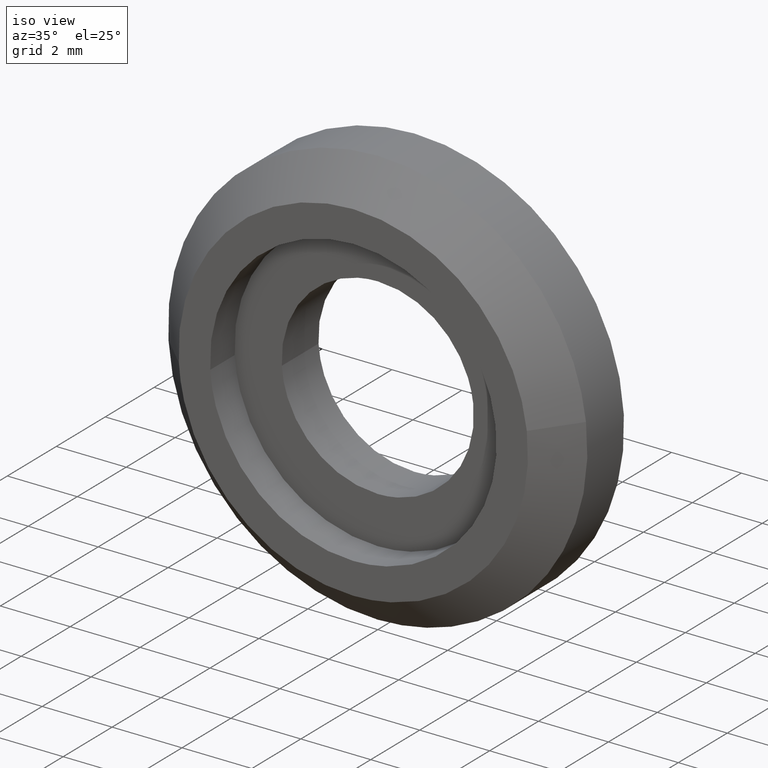
[diagram: clean part render]
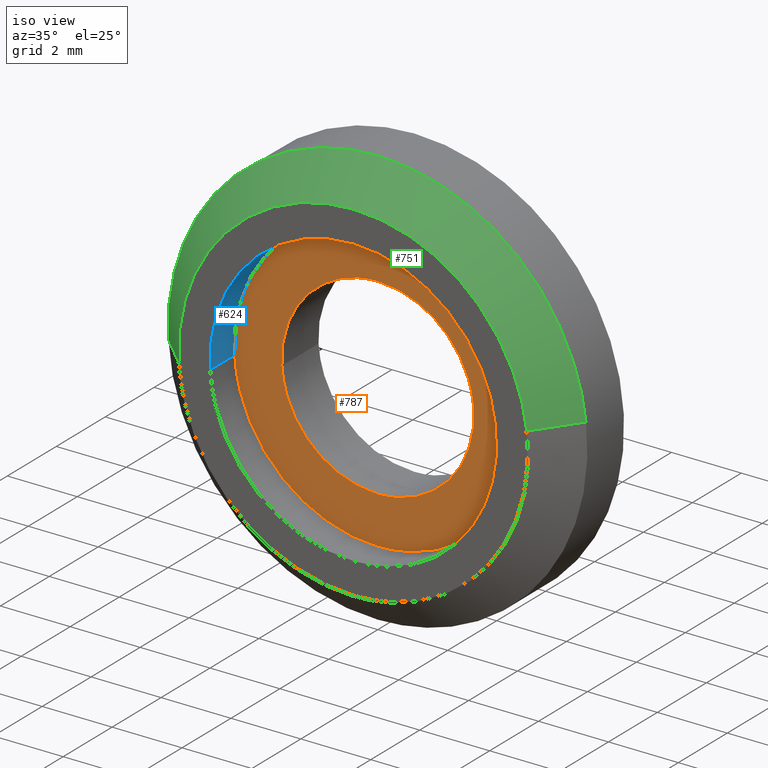
[diagram: same view with three faces highlighted in distinct colors, each labeled with its STEP entity id]
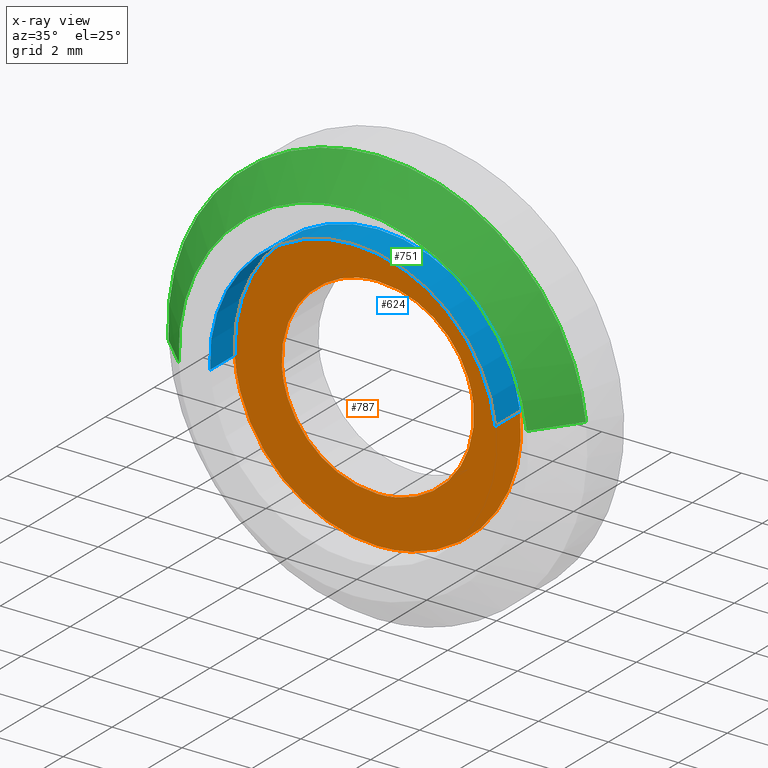
[diagram: x-ray of the same camera — body ghosted, the three highlighted faces saturated]
A machine part, iso view with three faces highlighted in distinct colors.
The next image is the same camera in x-ray (body ghosted, the three faces saturated) — at least one of them is partly hidden behind the body in this view.
Their STEP definitions:

[orange] entity #787 — the highlighted face is a freeform B-spline surface patch.
#305=CARTESIAN_POINT('',(-2.744870950539090,3.469447E-017,-0.167879316382936));
#306=VERTEX_POINT('',#305);
#312=CARTESIAN_POINT('',(0.0,0.0,-2.750000000000000));
#313=VERTEX_POINT('',#312);
#314=CARTESIAN_POINT('',(0.0,0.0,-2.750000000000000));
#315=CARTESIAN_POINT('',(-2.586945618898264,0.0,-2.750000000000000));
#316=CARTESIAN_POINT('',(-2.744870950539089,3.469447E-017,-0.167879316382936));
#324=(BOUNDED_CURVE()B_SPLINE_CURVE(2,(#314,#315,#316),.UNSPECIFIED.,.F.,.U.)B_SPLINE_CURVE_WITH_KNOTS((3,3),(0.500000000000000,0.739333224207285),.UNSPECIFIED.)CURVE()GEOMETRIC_REPRESENTATION_ITEM()RATIONAL_B_SPLINE_CURVE((1.0,0.719603686371707,0.976072603115385))REPRESENTATION_ITEM(''));
#325=EDGE_CURVE('',#313,#306,#324,.T.);
#327=CARTESIAN_POINT('',(2.730776679625815,3.194357E-017,0.324590089181917));
#328=VERTEX_POINT('',#327);
#329=CARTESIAN_POINT('',(2.730776679625815,3.194357E-017,0.324590089181916));
#330=CARTESIAN_POINT('',(2.750000000000000,0.0,0.162864279540707));
#331=CARTESIAN_POINT('',(2.750000000000000,0.0,0.0));
#332=CARTESIAN_POINT('',(2.750000000000000,0.0,-2.750000000000000));
#333=CARTESIAN_POINT('',(0.0,0.0,-2.750000000000000));
#341=(BOUNDED_CURVE()B_SPLINE_CURVE(2,(#329,#330,#331,#332,#333),.UNSPECIFIED.,.F.,.U.)B_SPLINE_CURVE_WITH_KNOTS((3,2,3),(0.229562724542522,0.250000000000000,0.500000000000000),.UNSPECIFIED.)CURVE()GEOMETRIC_REPRESENTATION_ITEM()RATIONAL_B_SPLINE_CURVE((0.956027246211430,0.976056242429929,1.0,0.707106781186548,1.0))REPRESENTATION_ITEM(''));
#342=EDGE_CURVE('',#328,#313,#341,.T.);
#390=CARTESIAN_POINT('',(0.0,0.0,2.750000000000000));
#391=VERTEX_POINT('',#390);
#392=CARTESIAN_POINT('',(0.0,0.0,2.750000000000000));
#393=CARTESIAN_POINT('',(2.442483599814294,0.0,2.750000000000000));
#394=CARTESIAN_POINT('',(2.730776679625815,3.194357E-017,0.324590089181916));
#402=(BOUNDED_CURVE()B_SPLINE_CURVE(2,(#392,#393,#394),.UNSPECIFIED.,.F.,.U.)B_SPLINE_CURVE_WITH_KNOTS((3,3),(0.0,0.229562724542522),.UNSPECIFIED.)CURVE()GEOMETRIC_REPRESENTATION_ITEM()RATIONAL_B_SPLINE_CURVE((1.0,0.731050538756619,0.956027246211430))REPRESENTATION_ITEM(''));
#403=EDGE_CURVE('',#391,#328,#402,.T.);
#405=CARTESIAN_POINT('',(-2.744870950539089,3.469447E-017,-0.167879316382936));
#406=CARTESIAN_POINT('',(-2.750000000000000,0.0,-0.084018009559996));
#407=CARTESIAN_POINT('',(-2.750000000000000,0.0,0.0));
#408=CARTESIAN_POINT('',(-2.750000000000000,0.0,2.750000000000000));
#409=CARTESIAN_POINT('',(0.0,0.0,2.750000000000000));
#417=(BOUNDED_CURVE()B_SPLINE_CURVE(2,(#405,#406,#407,#408,#409),.UNSPECIFIED.,.F.,.U.)B_SPLINE_CURVE_WITH_KNOTS((3,2,3),(0.739333224207285,0.750000000000000,1.0),.UNSPECIFIED.)CURVE()GEOMETRIC_REPRESENTATION_ITEM()RATIONAL_B_SPLINE_CURVE((0.976072603115385,0.987503094814841,1.0,0.707106781186548,1.0))REPRESENTATION_ITEM(''));
#418=EDGE_CURVE('',#306,#391,#417,.T.);
#461=CARTESIAN_POINT('',(4.071339481019626,4.606795E-014,0.483936804012672));
#462=VERTEX_POINT('',#461);
#463=CARTESIAN_POINT('',(0.0,0.0,-4.100000000000001));
#464=VERTEX_POINT('',#463);
#465=CARTESIAN_POINT('',(4.071339481019626,4.606795E-014,0.483936804012673));
#466=CARTESIAN_POINT('',(4.100000000000001,0.0,0.242817092725262));
#467=CARTESIAN_POINT('',(4.100000000000001,0.0,0.0));
#468=CARTESIAN_POINT('',(4.100000000000001,0.0,-4.100000000000001));
#469=CARTESIAN_POINT('',(0.0,0.0,-4.100000000000001));
#477=(BOUNDED_CURVE()B_SPLINE_CURVE(2,(#465,#466,#467,#468,#469),.UNSPECIFIED.,.F.,.U.)B_SPLINE_CURVE_WITH_KNOTS((3,2,3),(0.229562621213272,0.250000000000000,0.500000000000000),.UNSPECIFIED.)CURVE()GEOMETRIC_REPRESENTATION_ITEM()RATIONAL_B_SPLINE_CURVE((0.956027043681484,0.976056121372181,1.0,0.707106781186547,1.0))REPRESENTATION_ITEM(''));
#478=EDGE_CURVE('',#462,#464,#477,.T.);
#480=CARTESIAN_POINT('',(-4.092352866307658,-4.467954E-014,-0.250295860160577));
#481=VERTEX_POINT('',#480);
#482=CARTESIAN_POINT('',(0.0,0.0,-4.100000000000001));
#483=CARTESIAN_POINT('',(-3.856897850447983,0.0,-4.100000000000000));
#484=CARTESIAN_POINT('',(-4.092352866307658,-4.467954E-014,-0.250295860160578));
#492=(BOUNDED_CURVE()B_SPLINE_CURVE(2,(#482,#483,#484),.UNSPECIFIED.,.F.,.U.)B_SPLINE_CURVE_WITH_KNOTS((3,3),(0.500000000000000,0.739333095137616),.UNSPECIFIED.)CURVE()GEOMETRIC_REPRESENTATION_ITEM()RATIONAL_B_SPLINE_CURVE((1.0,0.719603837586229,0.976072326494038))REPRESENTATION_ITEM(''));
#493=EDGE_CURVE('',#464,#481,#492,.T.);
#560=CARTESIAN_POINT('',(0.0,0.0,4.100000000000001));
#561=VERTEX_POINT('',#560);
#562=CARTESIAN_POINT('',(0.0,0.0,4.100000000000001));
#563=CARTESIAN_POINT('',(3.641518761247744,0.0,4.100000000000001));
#564=CARTESIAN_POINT('',(4.071339481019626,4.606795E-014,0.483936804012673));
#572=(BOUNDED_CURVE()B_SPLINE_CURVE(2,(#562,#563,#564),.UNSPECIFIED.,.F.,.U.)B_SPLINE_CURVE_WITH_KNOTS((3,3),(0.0,0.229562621213272),.UNSPECIFIED.)CURVE()GEOMETRIC_REPRESENTATION_ITEM()RATIONAL_B_SPLINE_CURVE((1.0,0.731050659814366,0.956027043681484))REPRESENTATION_ITEM(''));
#573=EDGE_CURVE('',#561,#462,#572,.T.);
#607=CARTESIAN_POINT('',(-4.092352866307658,-4.467954E-014,-0.250295860160578));
#608=CARTESIAN_POINT('',(-4.100000000000001,0.0,-0.125264749139284));
#609=CARTESIAN_POINT('',(-4.100000000000001,0.0,0.0));
#610=CARTESIAN_POINT('',(-4.100000000000001,0.0,4.100000000000001));
#611=CARTESIAN_POINT('',(0.0,0.0,4.100000000000001));
#619=(BOUNDED_CURVE()B_SPLINE_CURVE(2,(#607,#608,#609,#610,#611),.UNSPECIFIED.,.F.,.U.)B_SPLINE_CURVE_WITH_KNOTS((3,2,3),(0.739333095137616,0.750000000000000,1.0),.UNSPECIFIED.)CURVE()GEOMETRIC_REPRESENTATION_ITEM()RATIONAL_B_SPLINE_CURVE((0.976072326494038,0.987502943600318,1.0,0.707106781186547,1.0))REPRESENTATION_ITEM(''));
#620=EDGE_CURVE('',#481,#561,#619,.T.);
#770=CARTESIAN_POINT('',(-4.509490424678293,0.0,4.509589907131077));
#771=CARTESIAN_POINT('',(-4.509490424678293,0.0,-4.509590200385929));
#772=CARTESIAN_POINT('',(4.509515424654451,0.0,4.509589907131077));
#773=CARTESIAN_POINT('',(4.509515424654451,0.0,-4.509590200385929));
#774=B_SPLINE_SURFACE_WITH_KNOTS('',1,1,((#770,#772),(#771,#773)),.UNSPECIFIED.,.F.,.F.,.U.,(2,2),(2,2),(0.0,9.019180107517006),(0.0,9.019005849332743),.UNSPECIFIED.);
#775=ORIENTED_EDGE('',*,*,#620,.F.);
#776=ORIENTED_EDGE('',*,*,#493,.F.);
#777=ORIENTED_EDGE('',*,*,#478,.F.);
#778=ORIENTED_EDGE('',*,*,#573,.F.);
#779=EDGE_LOOP('',(#775,#776,#777,#778));
#780=FACE_OUTER_BOUND('',#779,.T.);
#781=ORIENTED_EDGE('',*,*,#325,.T.);
#782=ORIENTED_EDGE('',*,*,#418,.T.);
#783=ORIENTED_EDGE('',*,*,#403,.T.);
#784=ORIENTED_EDGE('',*,*,#342,.T.);
#785=EDGE_LOOP('',(#781,#782,#783,#784));
#786=FACE_BOUND('',#785,.T.);
#787=ADVANCED_FACE('',(#780,#786),#774,.T.);

[blue] entity #624 — the highlighted face is a freeform B-spline surface patch.
#461=CARTESIAN_POINT('',(4.071339481019626,4.606795E-014,0.483936804012672));
#462=VERTEX_POINT('',#461);
#480=CARTESIAN_POINT('',(-4.092352866307658,-4.467954E-014,-0.250295860160577));
#481=VERTEX_POINT('',#480);
#495=CARTESIAN_POINT('',(-4.092352863930728,-1.0,-0.250295899024020));
#496=VERTEX_POINT('',#495);
#497=CARTESIAN_POINT('',(-4.092352863930728,-1.0,-0.250295899024020));
#498=CARTESIAN_POINT('',(-4.092352866307658,-4.467954E-014,-0.250295860160577));
#499=QUASI_UNIFORM_CURVE('',1,(#497,#498),.UNSPECIFIED.,.F.,.U.);
#500=EDGE_CURVE('',#496,#481,#499,.T.);
#517=CARTESIAN_POINT('',(4.071339475799119,-1.0,0.483936847932902));
#518=VERTEX_POINT('',#517);
#534=CARTESIAN_POINT('',(4.071339475799119,-1.0,0.483936847932902));
#535=CARTESIAN_POINT('',(4.071339481019626,4.606795E-014,0.483936804012672));
#536=QUASI_UNIFORM_CURVE('',1,(#534,#535),.UNSPECIFIED.,.F.,.U.);
#537=EDGE_CURVE('',#518,#462,#536,.T.);
#542=CARTESIAN_POINT('',(-4.092352673529653,-1.025000000000000,-0.250299012092914));
#543=CARTESIAN_POINT('',(-4.342651685622566,-1.025000000000000,3.842053661436740));
#544=CARTESIAN_POINT('',(-0.250299012092914,-1.025000000000000,4.092352673529653));
#545=CARTESIAN_POINT('',(3.614328312441953,-1.025000000000000,4.328723406603362));
#546=CARTESIAN_POINT('',(4.071339058091032,-1.025000000000000,0.483940362092710));
#547=CARTESIAN_POINT('',(-4.092352673529653,0.025625000000000,-0.250299012092914));
#548=CARTESIAN_POINT('',(-4.342651685622566,0.025625000000000,3.842053661436740));
#549=CARTESIAN_POINT('',(-0.250299012092914,0.025625000000000,4.092352673529653));
#550=CARTESIAN_POINT('',(3.614328312441953,0.025625000000000,4.328723406603362));
#551=CARTESIAN_POINT('',(4.071339058091032,0.025625000000000,0.483940362092710));
#559=(BOUNDED_SURFACE()B_SPLINE_SURFACE(2,1,((#542,#547),(#543,#548),(#544,#549),(#545,#550),(#546,#551)),.UNSPECIFIED.,.F.,.F.,.U.)B_SPLINE_SURFACE_WITH_KNOTS((3,2,3),(2,2),(0.0,6.793102422918757,13.314480748920760),(0.0,1.0),.UNSPECIFIED.)GEOMETRIC_REPRESENTATION_ITEM()RATIONAL_B_SPLINE_SURFACE(((1.0,1.0),(0.707106781186548,0.707106781186548),(1.0,1.0),(0.718822509939086,0.718822509939086),(0.977505800795127,0.977505800795127)))REPRESENTATION_ITEM('')SURFACE());
#560=CARTESIAN_POINT('',(0.0,0.0,4.100000000000001));
#561=VERTEX_POINT('',#560);
#562=CARTESIAN_POINT('',(0.0,0.0,4.100000000000001));
#563=CARTESIAN_POINT('',(3.641518761247744,0.0,4.100000000000001));
#564=CARTESIAN_POINT('',(4.071339481019626,4.606795E-014,0.483936804012673));
#572=(BOUNDED_CURVE()B_SPLINE_CURVE(2,(#562,#563,#564),.UNSPECIFIED.,.F.,.U.)B_SPLINE_CURVE_WITH_KNOTS((3,3),(0.0,0.229562621213272),.UNSPECIFIED.)CURVE()GEOMETRIC_REPRESENTATION_ITEM()RATIONAL_B_SPLINE_CURVE((1.0,0.731050659814366,0.956027043681484))REPRESENTATION_ITEM(''));
#573=EDGE_CURVE('',#561,#462,#572,.T.);
#574=ORIENTED_EDGE('',*,*,#573,.T.);
#575=ORIENTED_EDGE('',*,*,#537,.F.);
#576=CARTESIAN_POINT('',(0.0,-1.0,4.100000000000001));
#577=VERTEX_POINT('',#576);
#578=CARTESIAN_POINT('',(0.0,-1.0,4.100000000000001));
#579=CARTESIAN_POINT('',(3.641518721687739,-1.0,4.100000000000001));
#580=CARTESIAN_POINT('',(4.071339475799119,-1.0,0.483936847932902));
#588=(BOUNDED_CURVE()B_SPLINE_CURVE(2,(#578,#579,#580),.UNSPECIFIED.,.F.,.U.)B_SPLINE_CURVE_WITH_KNOTS((3,3),(0.0,0.229562619390121),.UNSPECIFIED.)CURVE()GEOMETRIC_REPRESENTATION_ITEM()RATIONAL_B_SPLINE_CURVE((1.0,0.731050661950319,0.956027040108030))REPRESENTATION_ITEM(''));
#589=EDGE_CURVE('',#577,#518,#588,.T.);
#590=ORIENTED_EDGE('',*,*,#589,.F.);
#591=CARTESIAN_POINT('',(-4.092352863930728,-1.0,-0.250295899024020));
#592=CARTESIAN_POINT('',(-4.100000000000001,-1.0,-0.125264768625487));
#593=CARTESIAN_POINT('',(-4.100000000000001,-1.0,0.0));
#594=CARTESIAN_POINT('',(-4.100000000000001,-1.0,4.100000000000001));
#595=CARTESIAN_POINT('',(0.0,-1.0,4.100000000000001));
#603=(BOUNDED_CURVE()B_SPLINE_CURVE(2,(#591,#592,#593,#594,#595),.UNSPECIFIED.,.F.,.U.)B_SPLINE_CURVE_WITH_KNOTS((3,2,3),(0.739333093499008,0.750000000000000,1.0),.UNSPECIFIED.)CURVE()GEOMETRIC_REPRESENTATION_ITEM()RATIONAL_B_SPLINE_CURVE((0.976072322982185,0.987502941680569,1.0,0.707106781186547,1.0))REPRESENTATION_ITEM(''));
#604=EDGE_CURVE('',#496,#577,#603,.T.);
#605=ORIENTED_EDGE('',*,*,#604,.F.);
#606=ORIENTED_EDGE('',*,*,#500,.T.);
#607=CARTESIAN_POINT('',(-4.092352866307658,-4.467954E-014,-0.250295860160578));
#608=CARTESIAN_POINT('',(-4.100000000000001,0.0,-0.125264749139284));
#609=CARTESIAN_POINT('',(-4.100000000000001,0.0,0.0));
#610=CARTESIAN_POINT('',(-4.100000000000001,0.0,4.100000000000001));
#611=CARTESIAN_POINT('',(0.0,0.0,4.100000000000001));
#619=(BOUNDED_CURVE()B_SPLINE_CURVE(2,(#607,#608,#609,#610,#611),.UNSPECIFIED.,.F.,.U.)B_SPLINE_CURVE_WITH_KNOTS((3,2,3),(0.739333095137616,0.750000000000000,1.0),.UNSPECIFIED.)CURVE()GEOMETRIC_REPRESENTATION_ITEM()RATIONAL_B_SPLINE_CURVE((0.976072326494038,0.987502943600318,1.0,0.707106781186547,1.0))REPRESENTATION_ITEM(''));
#620=EDGE_CURVE('',#481,#561,#619,.T.);
#621=ORIENTED_EDGE('',*,*,#620,.T.);
#622=EDGE_LOOP('',(#574,#575,#590,#605,#606,#621));
#623=FACE_OUTER_BOUND('',#622,.T.);
#624=ADVANCED_FACE('',(#623),#559,.F.);

[green] entity #751 — the highlighted face is a freeform B-spline surface patch.
#79=CARTESIAN_POINT('',(-5.988808790531301,3.377125E-013,-0.366291237210561));
#80=VERTEX_POINT('',#79);
#161=CARTESIAN_POINT('',(5.958057158182076,1.184327E-012,0.708205407949929));
#162=VERTEX_POINT('',#161);
#212=CARTESIAN_POINT('',(0.0,0.0,6.0));
#213=VERTEX_POINT('',#212);
#214=CARTESIAN_POINT('',(-5.988808790531301,3.377125E-013,-0.366291237210561));
#215=CARTESIAN_POINT('',(-6.0,0.0,-0.183316579794358));
#216=CARTESIAN_POINT('',(-6.0,0.0,0.0));
#217=CARTESIAN_POINT('',(-6.0,0.0,6.0));
#218=CARTESIAN_POINT('',(0.0,0.0,6.0));
#226=(BOUNDED_CURVE()B_SPLINE_CURVE(2,(#214,#215,#216,#217,#218),.UNSPECIFIED.,.F.,.U.)B_SPLINE_CURVE_WITH_KNOTS((3,2,3),(0.739332962241806,0.750000000000000,1.0),.UNSPECIFIED.)CURVE()GEOMETRIC_REPRESENTATION_ITEM()RATIONAL_B_SPLINE_CURVE((0.976072041672854,0.987502787903192,1.0,0.707106781186548,1.0))REPRESENTATION_ITEM(''));
#227=EDGE_CURVE('',#80,#213,#226,.T.);
#229=CARTESIAN_POINT('',(0.0,0.0,6.0));
#230=CARTESIAN_POINT('',(5.329047155691565,0.0,6.000000000000001));
#231=CARTESIAN_POINT('',(5.958057158182076,1.184327E-012,0.708205407949929));
#239=(BOUNDED_CURVE()B_SPLINE_CURVE(2,(#229,#230,#231),.UNSPECIFIED.,.F.,.U.)B_SPLINE_CURVE_WITH_KNOTS((3,3),(0.0,0.229562473515120),.UNSPECIFIED.)CURVE()GEOMETRIC_REPRESENTATION_ITEM()RATIONAL_B_SPLINE_CURVE((1.0,0.731050832853514,0.956026754186859))REPRESENTATION_ITEM(''));
#240=EDGE_CURVE('',#213,#162,#239,.T.);
#647=CARTESIAN_POINT('',(4.965047631818447,-0.999999999998283,0.590171173297372));
#648=VERTEX_POINT('',#647);
#666=CARTESIAN_POINT('',(-4.990673992109722,-0.999999999999276,-0.305242697679796));
#667=VERTEX_POINT('',#666);
#681=CARTESIAN_POINT('',(-4.990673992109722,-0.999999999999276,-0.305242697679796));
#682=CARTESIAN_POINT('',(-5.988808790531301,3.377125E-013,-0.366291237210561));
#683=QUASI_UNIFORM_CURVE('',1,(#681,#682),.UNSPECIFIED.,.F.,.U.);
#684=EDGE_CURVE('',#667,#80,#683,.T.);
#689=CARTESIAN_POINT('',(4.965047631818447,-0.999999999998283,0.590171173297372));
#690=CARTESIAN_POINT('',(5.958057158182076,1.184327E-012,0.708205407949929));
#691=QUASI_UNIFORM_CURVE('',1,(#689,#690),.UNSPECIFIED.,.F.,.U.);
#692=EDGE_CURVE('',#648,#162,#691,.T.);
#697=CARTESIAN_POINT('',(-4.965720622148785,-1.025000000000000,-0.303716484185913));
#698=CARTESIAN_POINT('',(-5.269437106334698,-1.025000000000000,4.662004137962872));
#699=CARTESIAN_POINT('',(-0.303716484185913,-1.025000000000000,4.965720622148785));
#700=CARTESIAN_POINT('',(4.385678866926517,-1.025000000000000,5.252536328744322));
#701=CARTESIAN_POINT('',(4.940222393659238,-1.025000000000000,0.587220317417373));
#702=CARTESIAN_POINT('',(-6.014385994740760,0.025625000000000,-0.367855606034723));
#703=CARTESIAN_POINT('',(-6.382241600775484,0.025625000000000,5.646530388706038));
#704=CARTESIAN_POINT('',(-0.367855606034723,0.025625000000000,6.014385994740760));
#705=CARTESIAN_POINT('',(5.311850496989766,0.025625000000000,6.361771701686435));
#706=CARTESIAN_POINT('',(5.983503027295066,0.025625000000000,0.711230035203630));
#714=(BOUNDED_SURFACE()B_SPLINE_SURFACE(2,1,((#697,#702),(#698,#703),(#699,#704),(#700,#705),(#701,#706)),.UNSPECIFIED.,.F.,.F.,.U.)B_SPLINE_SURFACE_WITH_KNOTS((3,2,3),(2,2),(0.0,9.983582387097519,19.567821478711139),(0.0,1.0),.UNSPECIFIED.)GEOMETRIC_REPRESENTATION_ITEM()RATIONAL_B_SPLINE_SURFACE(((1.0,1.0),(0.707106781186548,0.707106781186548),(1.0,1.0),(0.718822509939086,0.718822509939086),(0.977505800795127,0.977505800795127)))REPRESENTATION_ITEM('')SURFACE());
#715=CARTESIAN_POINT('',(0.0,-1.0,5.0));
#716=VERTEX_POINT('',#715);
#717=CARTESIAN_POINT('',(0.0,-1.0,5.0));
#718=CARTESIAN_POINT('',(4.440872629732739,-1.0,4.999999999999999));
#719=CARTESIAN_POINT('',(4.965047631818447,-0.999999999998283,0.590171173297372));
#727=(BOUNDED_CURVE()B_SPLINE_CURVE(2,(#717,#718,#719),.UNSPECIFIED.,.F.,.U.)B_SPLINE_CURVE_WITH_KNOTS((3,3),(0.0,0.229562473514733),.UNSPECIFIED.)CURVE()GEOMETRIC_REPRESENTATION_ITEM()RATIONAL_B_SPLINE_CURVE((1.0,0.731050832853967,0.956026754186101))REPRESENTATION_ITEM(''));
#728=EDGE_CURVE('',#716,#648,#727,.T.);
#729=ORIENTED_EDGE('',*,*,#728,.T.);
#730=ORIENTED_EDGE('',*,*,#692,.T.);
#731=ORIENTED_EDGE('',*,*,#240,.F.);
#732=ORIENTED_EDGE('',*,*,#227,.F.);
#733=ORIENTED_EDGE('',*,*,#684,.F.);
#734=CARTESIAN_POINT('',(-4.990673992109722,-0.999999999999276,-0.305242697679796));
#735=CARTESIAN_POINT('',(-5.000000000000001,-1.0,-0.152763816498427));
#736=CARTESIAN_POINT('',(-5.0,-1.0,0.0));
#737=CARTESIAN_POINT('',(-5.000000000000001,-1.0,5.000000000000001));
#738=CARTESIAN_POINT('',(0.0,-1.0,5.0));
#746=(BOUNDED_CURVE()B_SPLINE_CURVE(2,(#734,#735,#736,#737,#738),.UNSPECIFIED.,.F.,.U.)B_SPLINE_CURVE_WITH_KNOTS((3,2,3),(0.739332962241590,0.750000000000000,1.0),.UNSPECIFIED.)CURVE()GEOMETRIC_REPRESENTATION_ITEM()RATIONAL_B_SPLINE_CURVE((0.976072041672392,0.987502787902939,1.0,0.707106781186548,1.0))REPRESENTATION_ITEM(''));
#747=EDGE_CURVE('',#667,#716,#746,.T.);
#748=ORIENTED_EDGE('',*,*,#747,.T.);
#749=EDGE_LOOP('',(#729,#730,#731,#732,#733,#748));
#750=FACE_OUTER_BOUND('',#749,.T.);
#751=ADVANCED_FACE('',(#750),#714,.T.);